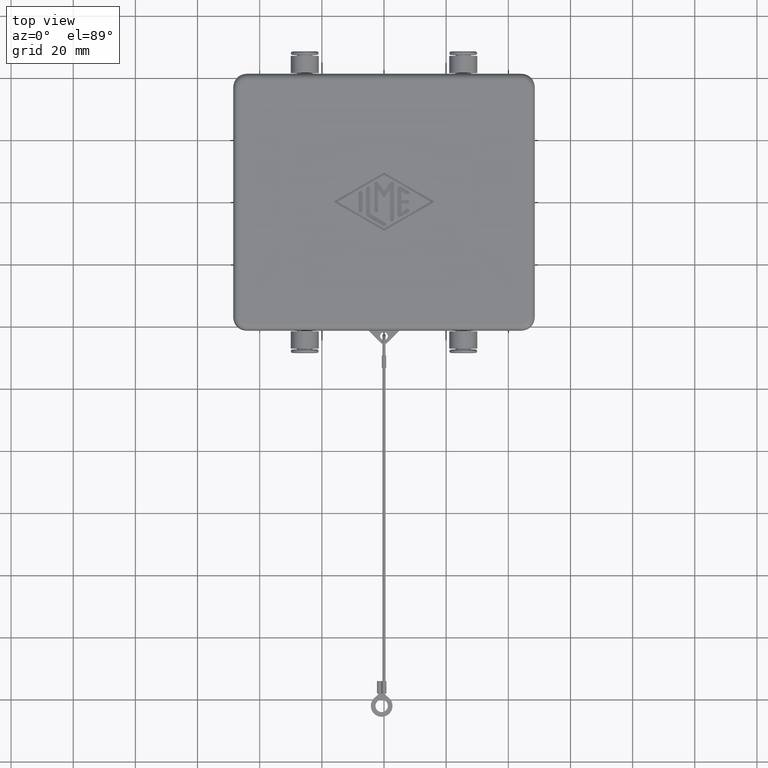
[diagram: clean part render]
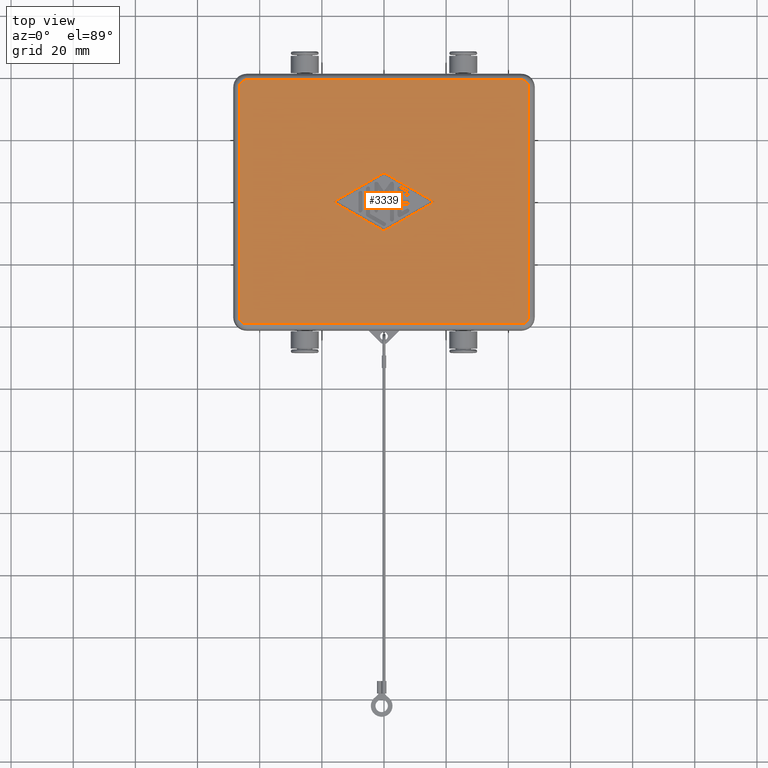
[diagram: same view with one face highlighted and labeled with its STEP entity id]
A machine part, top view. The second image highlights one B-rep face of the part: STEP entity #3339.
In plain terms, the highlighted planar face has unit normal (0, 0, 1).
Its self-contained STEP definition (entity closure, byte-faithful):
#670=CARTESIAN_POINT('',(46.500000000000014,36.949999999999996,12.000000000000002));
#671=VERTEX_POINT('',#670);
#679=CARTESIAN_POINT('',(46.500000000000014,-36.950000000000003,12.000000000000002));
#680=VERTEX_POINT('',#679);
#681=CARTESIAN_POINT('',(46.500000000000014,36.949999999999996,12.000000000000002));
#682=DIRECTION('',(0.0,-1.0,0.0));
#683=VECTOR('',#682,73.900000000000006);
#684=LINE('',#681,#683);
#685=EDGE_CURVE('',#671,#680,#684,.T.);
#754=CARTESIAN_POINT('',(44.200000000000017,-39.250000000000000,12.000000000000002));
#755=VERTEX_POINT('',#754);
#763=CARTESIAN_POINT('',(-44.200000000000017,-39.250000000000000,12.000000000000002));
#764=VERTEX_POINT('',#763);
#765=CARTESIAN_POINT('',(44.200000000000017,-39.250000000000000,12.000000000000002));
#766=DIRECTION('',(-1.0,0.0,0.0));
#767=VECTOR('',#766,88.400000000000034);
#768=LINE('',#765,#767);
#769=EDGE_CURVE('',#755,#764,#768,.T.);
#838=CARTESIAN_POINT('',(-46.500000000000014,-36.949999999999996,12.000000000000002));
#839=VERTEX_POINT('',#838);
#847=CARTESIAN_POINT('',(-46.500000000000014,36.950000000000003,12.000000000000002));
#848=VERTEX_POINT('',#847);
#849=CARTESIAN_POINT('',(-46.500000000000014,-36.949999999999996,12.000000000000002));
#850=DIRECTION('',(0.0,1.0,0.0));
#851=VECTOR('',#850,73.900000000000006);
#852=LINE('',#849,#851);
#853=EDGE_CURVE('',#839,#848,#852,.T.);
#880=CARTESIAN_POINT('',(-44.200000000000017,39.250000000000000,12.000000000000002));
#881=VERTEX_POINT('',#880);
#889=CARTESIAN_POINT('',(44.200000000000017,39.250000000000000,12.000000000000002));
#890=VERTEX_POINT('',#889);
#891=CARTESIAN_POINT('',(-44.200000000000017,39.250000000000000,12.000000000000002));
#892=DIRECTION('',(1.0,0.0,0.0));
#893=VECTOR('',#892,88.400000000000034);
#894=LINE('',#891,#893);
#895=EDGE_CURVE('',#881,#890,#894,.T.);
#2529=CARTESIAN_POINT('',(-16.249999999999996,8.660806E-017,12.000000000000002));
#2530=VERTEX_POINT('',#2529);
#2537=CARTESIAN_POINT('',(2.748489E-015,-9.375000000000002,12.000000000000002));
#2538=VERTEX_POINT('',#2537);
#2539=CARTESIAN_POINT('',(2.748489E-015,-9.375000000000002,12.000000000000002));
#2540=DIRECTION('',(-0.866185586048600,0.499722453489577,0.0));
#2541=VECTOR('',#2540,18.760413774754543);
#2542=LINE('',#2539,#2541);
#2543=EDGE_CURVE('',#2538,#2530,#2542,.T.);
#2568=CARTESIAN_POINT('',(16.250000000000004,-1.857605E-015,12.000000000000002));
#2569=VERTEX_POINT('',#2568);
#2570=CARTESIAN_POINT('',(16.250000000000004,-1.857605E-015,12.000000000000002));
#2571=DIRECTION('',(-0.866185586048600,-0.499722453489577,0.0));
#2572=VECTOR('',#2571,18.760413774754543);
#2573=LINE('',#2570,#2572);
#2574=EDGE_CURVE('',#2569,#2538,#2573,.T.);
#2599=CARTESIAN_POINT('',(-2.021297E-015,9.375000000000002,12.000000000000002));
#2600=VERTEX_POINT('',#2599);
#2601=CARTESIAN_POINT('',(-2.021297E-015,9.375000000000002,12.000000000000002));
#2602=DIRECTION('',(0.866185586048601,-0.499722453489577,0.0));
#2603=VECTOR('',#2602,18.760413774754550);
#2604=LINE('',#2601,#2603);
#2605=EDGE_CURVE('',#2600,#2569,#2604,.T.);
#2628=CARTESIAN_POINT('',(-16.249999999999996,8.660806E-017,12.000000000000002));
#2629=DIRECTION('',(0.866185586048600,0.499722453489577,0.0));
#2630=VECTOR('',#2629,18.760413774754536);
#2631=LINE('',#2628,#2630);
#2632=EDGE_CURVE('',#2530,#2600,#2631,.T.);
#3294=CARTESIAN_POINT('',(0.0,5.566578E-016,12.000000000000002));
#3295=DIRECTION('',(0.0,0.0,1.0));
#3296=DIRECTION('',(1.0,0.0,0.0));
#3297=AXIS2_PLACEMENT_3D('',#3294,#3295,#3296);
#3298=PLANE('',#3297);
#3299=CARTESIAN_POINT('',(-44.200000000000017,36.950000000000003,12.000000000000002));
#3300=DIRECTION('',(0.0,0.0,-1.000000000000000));
#3301=DIRECTION('',(-0.707106781186549,0.707106781186546,0.0));
#3302=AXIS2_PLACEMENT_3D('',#3299,#3300,#3301);
#3303=CIRCLE('',#3302,2.300000000000000);
#3304=EDGE_CURVE('',#848,#881,#3303,.T.);
#3305=ORIENTED_EDGE('',*,*,#3304,.F.);
#3306=ORIENTED_EDGE('',*,*,#853,.F.);
#3307=CARTESIAN_POINT('',(-44.200000000000017,-36.949999999999996,12.000000000000002));
#3308=DIRECTION('',(0.0,0.0,-1.000000000000000));
#3309=DIRECTION('',(-0.707106781186549,-0.707106781186546,0.0));
#3310=AXIS2_PLACEMENT_3D('',#3307,#3308,#3309);
#3311=CIRCLE('',#3310,2.299999999999999);
#3312=EDGE_CURVE('',#764,#839,#3311,.T.);
#3313=ORIENTED_EDGE('',*,*,#3312,.F.);
#3314=ORIENTED_EDGE('',*,*,#769,.F.);
#3315=CARTESIAN_POINT('',(44.200000000000017,-36.950000000000003,12.000000000000002));
#3316=DIRECTION('',(0.0,0.0,-1.000000000000000));
#3317=DIRECTION('',(0.707106781186549,-0.707106781186546,0.0));
#3318=AXIS2_PLACEMENT_3D('',#3315,#3316,#3317);
#3319=CIRCLE('',#3318,2.300000000000000);
#3320=EDGE_CURVE('',#680,#755,#3319,.T.);
#3321=ORIENTED_EDGE('',*,*,#3320,.F.);
#3322=ORIENTED_EDGE('',*,*,#685,.F.);
#3323=CARTESIAN_POINT('',(44.200000000000017,36.949999999999996,12.000000000000002));
#3324=DIRECTION('',(0.0,0.0,-1.000000000000000));
#3325=DIRECTION('',(0.707106781186549,0.707106781186546,0.0));
#3326=AXIS2_PLACEMENT_3D('',#3323,#3324,#3325);
#3327=CIRCLE('',#3326,2.299999999999999);
#3328=EDGE_CURVE('',#890,#671,#3327,.T.);
#3329=ORIENTED_EDGE('',*,*,#3328,.F.);
#3330=ORIENTED_EDGE('',*,*,#895,.F.);
#3331=EDGE_LOOP('',(#3305,#3306,#3313,#3314,#3321,#3322,#3329,#3330));
#3332=FACE_OUTER_BOUND('',#3331,.T.);
#3333=ORIENTED_EDGE('',*,*,#2543,.T.);
#3334=ORIENTED_EDGE('',*,*,#2632,.T.);
#3335=ORIENTED_EDGE('',*,*,#2605,.T.);
#3336=ORIENTED_EDGE('',*,*,#2574,.T.);
#3337=EDGE_LOOP('',(#3333,#3334,#3335,#3336));
#3338=FACE_BOUND('',#3337,.T.);
#3339=ADVANCED_FACE('',(#3332,#3338),#3298,.T.);